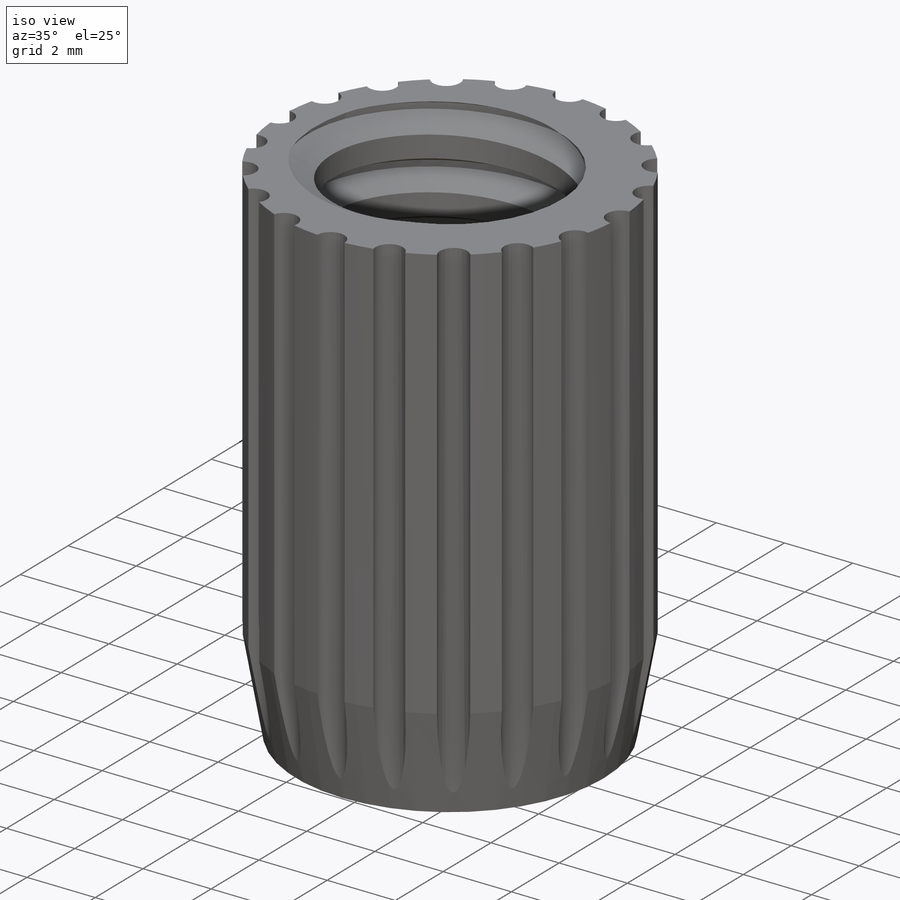
[diagram: iso view]
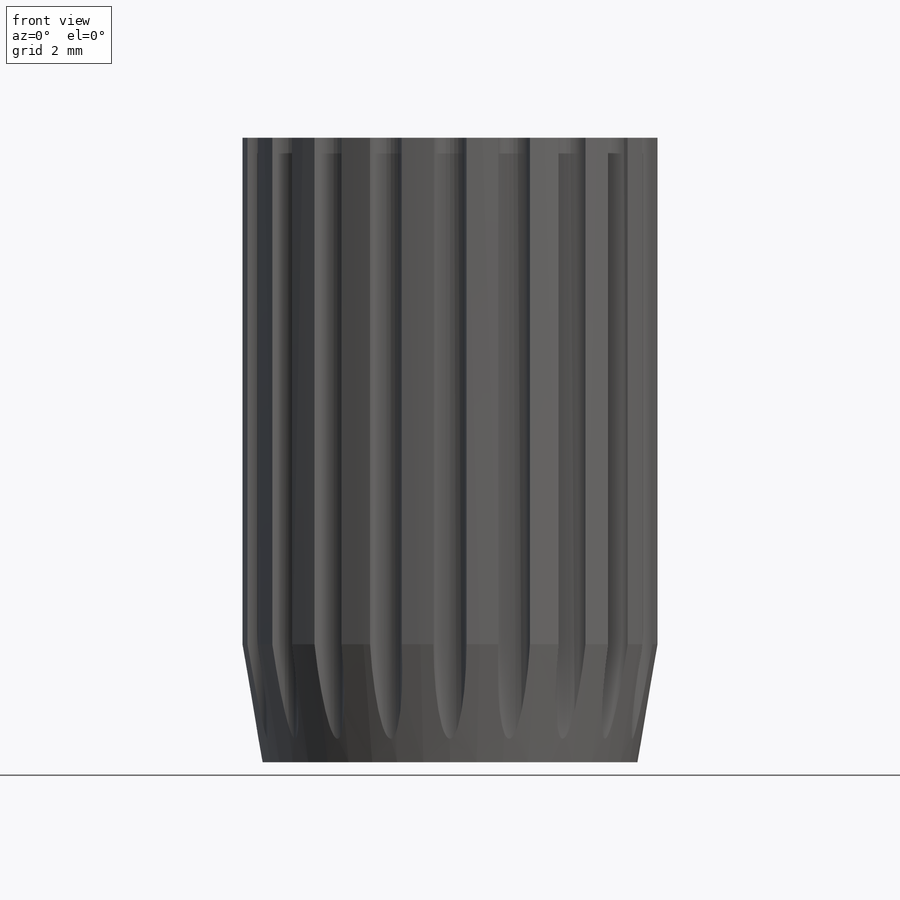
[diagram: front view]
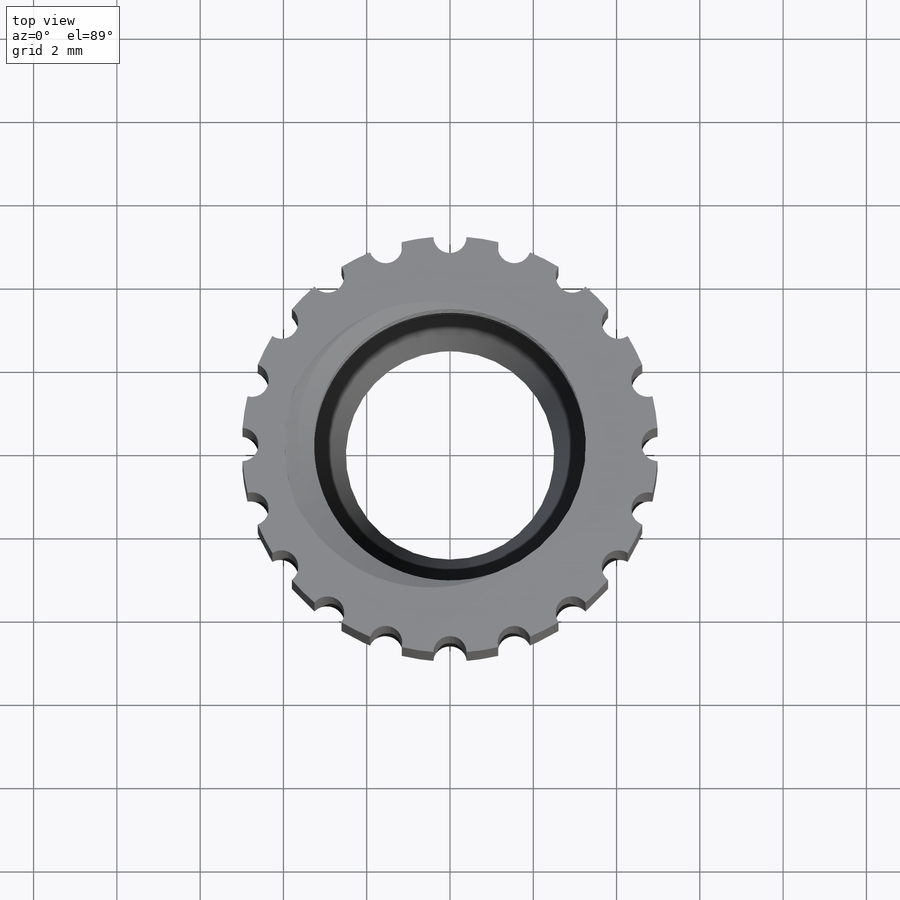
[diagram: top view]
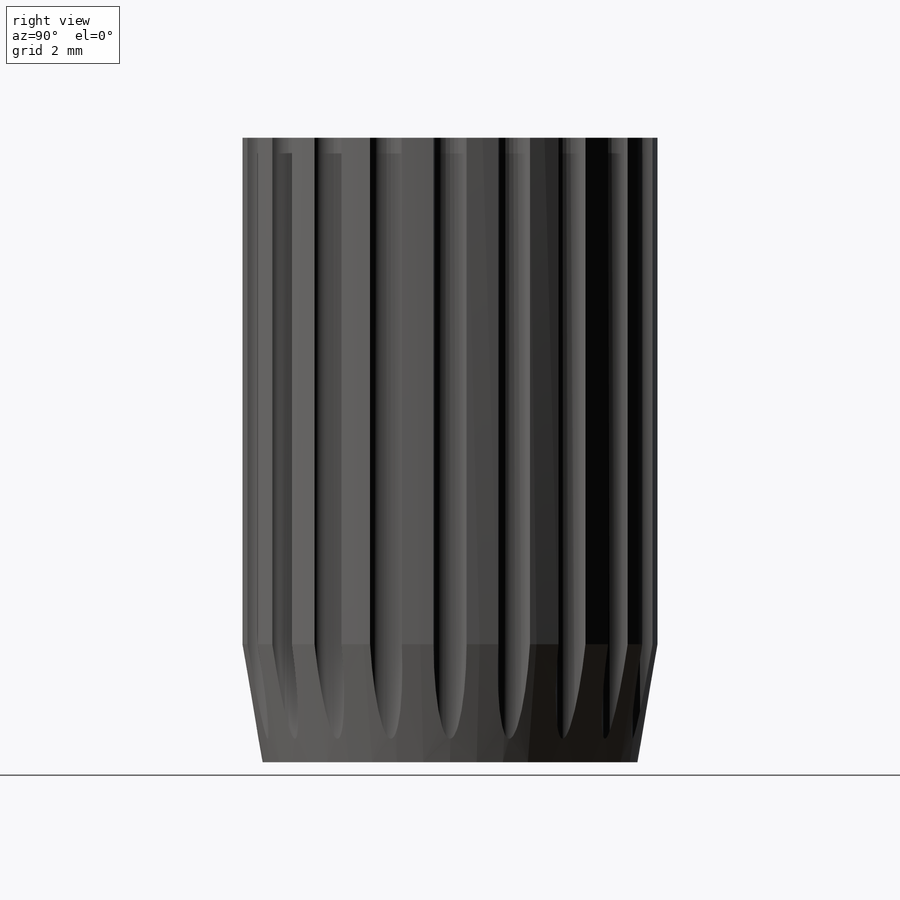
[diagram: right view]
SOLIDWORKS PART (.sldprt)
format: sldprt  version: not decoded by parser v0  size: 677,376 bytes
history: native  units: mm
features: sketch x7, material x1, extrude x1, hole x1, chamfer x1, cut_extrude x1, helix x1, sweep x1 (+13 scaffold rows collapsed)
feature tree (27):
  scaffold x13  (default folders/planes/origin — collapsed)
  material  "Material <not specified>"
  sketch  "Sketch1"  dims[D1=10.0mm]
  extrude  "Boss-Extrude1"  Depth=15mm
  hole  "5/16-18 Tapped Hole1"  Diameter=6.5278mm Depth=10mm
  sketch  "Sketch3"
  sketch  "Sketch2"  dims[hole-wizard template sketch: 50 standard entries collapsed; hole parameters above]
  sketch  "Sketch4"  dims[D1=2.7mm]
  chamfer  "Chamfer1"  Distance=0.5mm Angle=80deg
  sketch  "Sketch5"  dims[D1=0.8mm D2=20.0]
  cut_extrude  "Cut-Extrude2"  [1 undecoded]
  sketch  "Sketch6"  dims[c1.D1=3.4585mm c1.D2=0.125mm c1.D3=0.125mm c1.D4=1.0mm c1.D5=4.0mm c1.D6=0.5415mm c2.D6=30.0deg c2.D3=0.125mm c2.D4=~0.087541mm c2.D1=3.4585mm c2.D2=0.125mm c3.D3=~3.301778mm c3.D1=~0.088194mm c3.D2=~0.992188mm c4.D3=~1.402892mm c5.D3=30.0deg c5.D4=~2.210554mm c6.D4=30.0deg c7.D4=~1.020798mm c8.D4=30.0deg c8.D5=~3.10261mm c8.D6=~3.96875mm c8.D7=~1.984375mm c8.D2=~0.352778mm c9.D4=~3.10261mm c9.D5=~0.86614mm c10.D5=30.0deg c11.D5=~3.96875mm c12.D5=150.0deg c13.D5=~1.529299mm c13.D3=~1.411111mm]
  sketch  "Sketch7"  dims[D1=~3.498116mm]
  helix  "Helix/Spiral1"  Pitch=10.71mm
  sweep  "Cut-Sweep4"
decode coverage: 10 of 13 modeling features carry decoded parameters
note: ~ marks probable driven/reference dimensions
note: 1 parameter value undecoded
note: suppression state not decoded; provenance and decode notes live in map.json
